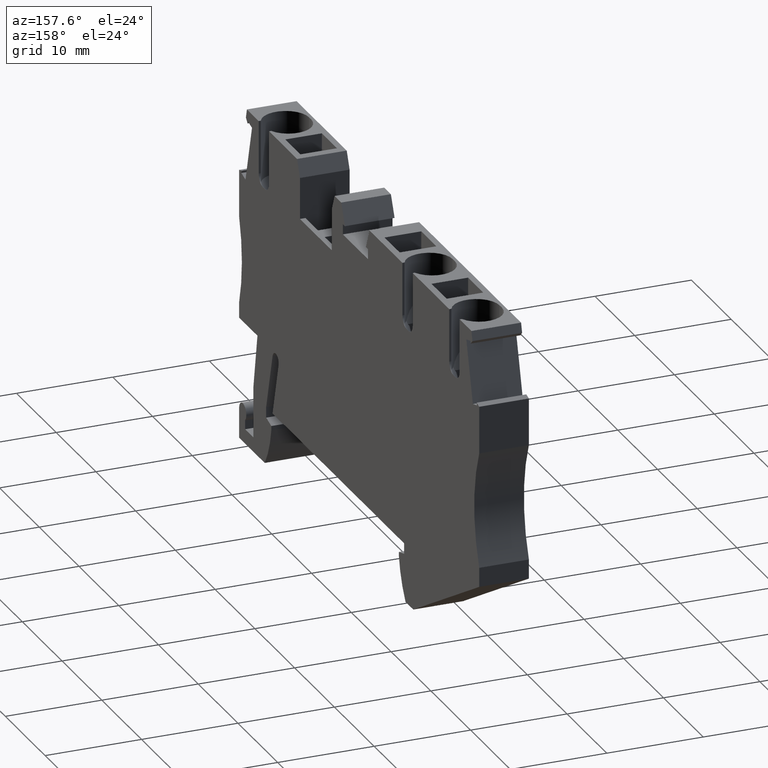
[diagram: clean part render]
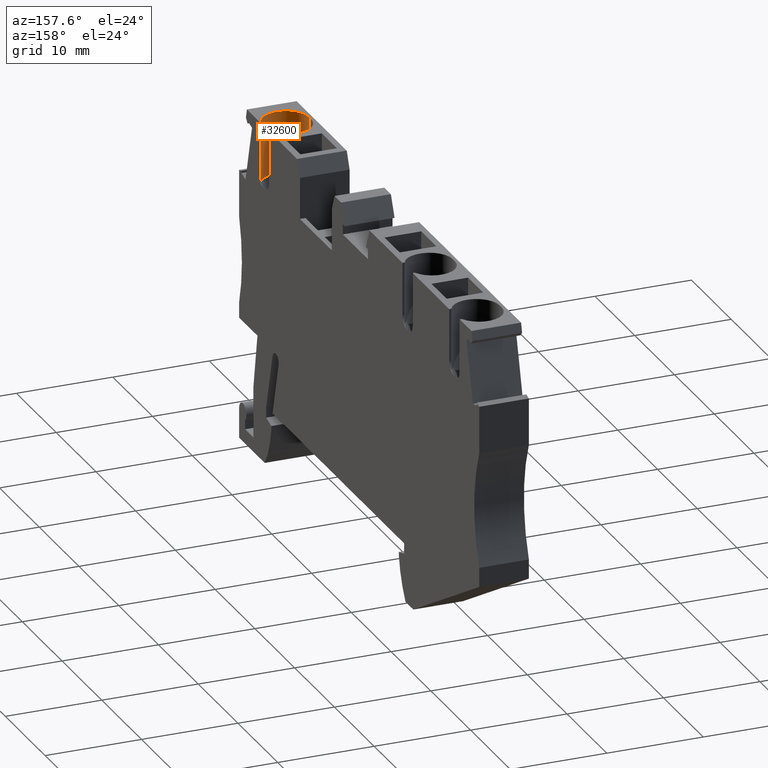
[diagram: same view with one face highlighted and labeled with its STEP entity id]
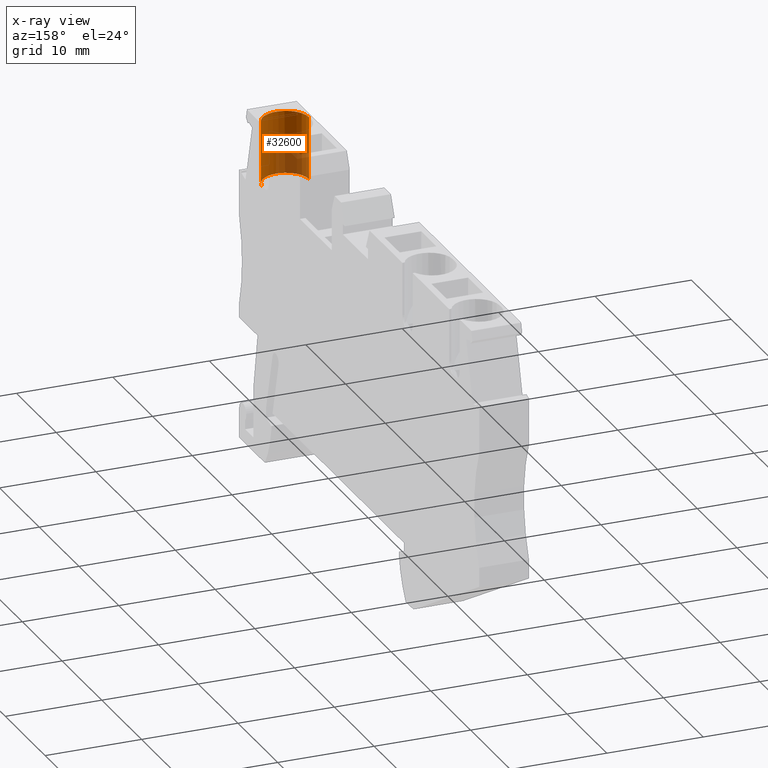
[diagram: x-ray of the same camera — body ghosted, the highlighted face saturated]
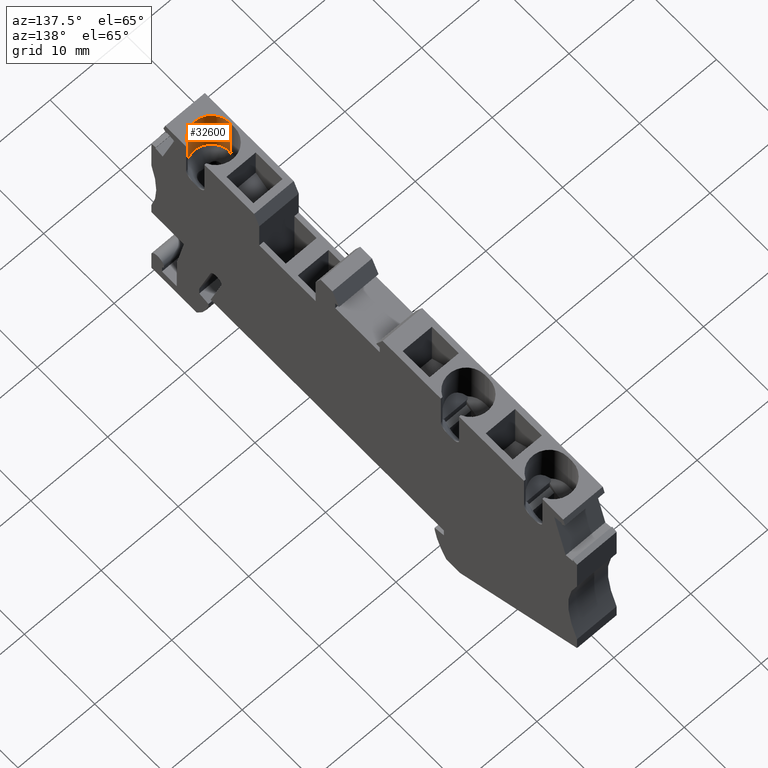
[diagram: same view with one face highlighted and labeled with its STEP entity id]
A machine part, auxiliary view. The second image highlights one B-rep face of the part: STEP entity #32600.
The next image is the same camera in x-ray: the body ghosted, the highlighted face saturated — about 33% of this face is hidden behind the body in this view.
A second angle (auxiliary view) of the same face is appended — the face is thin or edge-on in the first view.
In plain terms, the highlighted cylindrical surface (edge-blend (fillet) strip) has radius 2.4 mm, axis along (-0, 0, 1).
Its self-contained STEP definition (entity closure, byte-faithful):
#5310=CARTESIAN_POINT('',(-16.4428327783254,-15.6499999999752,
53.6699999999862));
#5320=VERTEX_POINT('',#5310);
#22580=CARTESIAN_POINT('',(-16.4428327783235,-9.15000000000117,
48.8699999999862));
#22590=VERTEX_POINT('',#22580);
#22620=CARTESIAN_POINT('',(-16.4428327783245,-9.15000000000117,
51.2699999999862));
#22630=DIRECTION('',(-1.38777878078145E-17,-1.,6.01825140036731E-25));
#22640=DIRECTION('',(-1.,1.38777878078145E-17,-4.0985636225261E-13));
#22650=AXIS2_PLACEMENT_3D('',#22620,#22630,#22640);
#22660=CIRCLE('',#22650,2.4);
#22670=CARTESIAN_POINT('',(-17.4428327783258,-9.15000000000117,
53.4517424229127));
#22680=VERTEX_POINT('',#22670);
#22690=EDGE_CURVE('',#22680,#22590,#22660,.T.);
#31260=CARTESIAN_POINT('',(-16.4428327783213,-15.6500000000012,
48.8699999999711));
#31270=VERTEX_POINT('',#31260);
#31470=CARTESIAN_POINT('',(-16.4428327783245,-15.9456960000012,
51.2699999999862));
#31480=DIRECTION('',(1.38777878078145E-17,1.,-6.01831450923973E-25));
#31490=DIRECTION('',(-1.,1.38777878078145E-17,-4.0985636225261E-13));
#31500=AXIS2_PLACEMENT_3D('',#31470,#31480,#31490);
#31510=CYLINDRICAL_SURFACE('',#31500,2.4);
#31520=CARTESIAN_POINT('',(-16.4428327783213,-15.9456960000012,
48.8699999999711));
#31530=DIRECTION('',(-1.38777878078145E-17,1.,1.46035561422197E-15));
#31540=VECTOR('',#31530,1.);
#31550=LINE('',#31520,#31540);
#31560=EDGE_CURVE('',#31270,#22590,#31550,.T.);
#31570=ORIENTED_EDGE('',*,*,#31560,.T.);
#31580=CARTESIAN_POINT('',(-16.4428327783243,-15.6500000000012,
51.2699999999711));
#31590=DIRECTION('',(1.38777878078145E-17,-1.,-1.46035561422197E-15));
#31600=DIRECTION('',(-1.,-5.96744875736022E-16,-1.25291079088555E-12));
#31610=AXIS2_PLACEMENT_3D('',#31580,#31590,#31600);
#31620=CIRCLE('',#31610,2.40000000000001);
#31630=EDGE_CURVE('',#5320,#31270,#31620,.T.);
#31640=ORIENTED_EDGE('',*,*,#31630,.T.);
#31650=CARTESIAN_POINT('',(-16.4428327783283,-14.6500000000011,
53.6699999999711));
#31660=DIRECTION('',(-1.25291079088555E-12,-1.46035561422272E-15,1.));
#31670=DIRECTION('',(0.992546151641322,-0.121869343405148,
1.2433938112635E-12));
#31680=AXIS2_PLACEMENT_3D('',#31650,#31660,#31670);
#31690=CYLINDRICAL_SURFACE('',#31680,1.);
#31700=CARTESIAN_POINT('',(-16.4428327783243,-15.9456960000012,
51.2699999999711));
#31710=DIRECTION('',(-1.38777878078145E-17,1.,1.46035561422198E-15));
#31720=DIRECTION('',(-1.,-1.38777878078145E-17,-1.25291079088555E-12));
#31730=AXIS2_PLACEMENT_3D('',#31700,#31710,#31720);
#31740=CYLINDRICAL_SURFACE('',#31730,2.4);
#31750=CARTESIAN_POINT('',(-17.442832778328,-14.650000000001,
53.4517424228966));
#31760=CARTESIAN_POINT('',(-17.442832778328,-14.6665135454102,
53.4517424228966));
#31770=CARTESIAN_POINT('',(-17.4424259800981,-14.6829537943668,
53.4519290173053));
#31780=CARTESIAN_POINT('',(-17.4416097830552,-14.6994418327753,
53.4523025671741));
#31790=CARTESIAN_POINT('',(-17.4407938875835,-14.7159237791291,
53.4526759790225));
#31800=CARTESIAN_POINT('',(-17.4395682135413,-14.732416126201,
53.4532365210755));
#31810=CARTESIAN_POINT('',(-17.4379315161851,-14.7488863080281,
53.4539822576618));
#31820=CARTESIAN_POINT('',(-17.4362948264604,-14.7653564130592,
53.454727990771));
#31830=CARTESIAN_POINT('',(-17.434247123736,-14.7818039636034,
53.4556589079843));
#31840=CARTESIAN_POINT('',(-17.4317909820997,-14.7981947070343,
53.4567696886181));
#31850=CARTESIAN_POINT('',(-17.4293348463299,-14.8145854113161,
53.4578804665989));
#31860=CARTESIAN_POINT('',(-17.426470317392,-14.8309189204305,
53.4591710754275));
#31870=CARTESIAN_POINT('',(-17.4232039650077,-14.8471606865697,
53.4606328620274));
#31880=CARTESIAN_POINT('',(-17.4199376137791,-14.8634024469627,
53.4620946481102));
#31890=CARTESIAN_POINT('',(-17.4162695149555,-14.8795520956419,
53.4637275607566));
#31900=CARTESIAN_POINT('',(-17.4122101141881,-14.8955760182129,
53.4655198884517));
#31910=CARTESIAN_POINT('',(-17.4081507072582,-14.9115999651095,
53.4673122188676));
#31920=CARTESIAN_POINT('',(-17.4037000977437,-14.9274978497349,
53.4692638993077));
#31930=CARTESIAN_POINT('',(-17.3988722368989,-14.9432380494685,
53.4713606141478));
#31940=CARTESIAN_POINT('',(-17.3940443600578,-14.9589783013548,
53.473457335935));
#31950=CARTESIAN_POINT('',(-17.3888393479176,-14.9745605733969,
53.4756990186396));
#31960=CARTESIAN_POINT('',(-17.3832740728083,-14.9899561319305,
53.4780693312262));
#31970=CARTESIAN_POINT('',(-17.3777084574302,-15.00535263177,
53.4804397887371));
#31980=CARTESIAN_POINT('',(-17.3717841826878,-15.0205584915094,
53.4829381811296));
#31990=CARTESIAN_POINT('',(-17.3655159449038,-15.0355590410283,
53.4855486394983));
#32000=CARTESIAN_POINT('',(-17.3529711243658,-15.0655801104534,
53.4907730315662));
#32010=CARTESIAN_POINT('',(-17.3389361227699,-15.0950418778142,
53.4964937979803));
#32020=CARTESIAN_POINT('',(-17.3234863100686,-15.123760864819,
53.5025880401224));
#32030=CARTESIAN_POINT('',(-17.3080367303051,-15.1524794188261,
53.5086821903812));
#32040=CARTESIAN_POINT('',(-17.2911746592403,-15.1804502746313,
53.5151482780299));
#32050=CARTESIAN_POINT('',(-17.2730115310154,-15.2074972991764,
53.5218444081355));
#32060=CARTESIAN_POINT('',(-17.25484841094,-15.2345443115861,
53.5285405352367));
#32070=CARTESIAN_POINT('',(-17.2353870734544,-15.260663303184,
53.5354650438485));
#32080=CARTESIAN_POINT('',(-17.2147686056861,-15.2857004628311,
53.5424689389086));
#32090=CARTESIAN_POINT('',(-17.1941498478899,-15.3107379746612,
53.5494729324884));
#32100=CARTESIAN_POINT('',(-17.172377239757,-15.3346901171549,
53.5565547050278));
#32110=CARTESIAN_POINT('',(-17.1496105844828,-15.3574356032381,
53.5635703897176));
#32120=CARTESIAN_POINT('',(-17.126840313834,-15.3801847013342,
53.5705871885073));
#32130=CARTESIAN_POINT('',(-17.1028533253179,-15.4019487507241,
53.5776068412721));
#32140=CARTESIAN_POINT('',(-17.0777712448229,-15.422562711871,
53.5844876633125));
#32150=CARTESIAN_POINT('',(-17.0526894949032,-15.4431764013312,
53.5913683946655));
#32160=CARTESIAN_POINT('',(-17.0265163303428,-15.4626365190426,
53.5981086933166));
#32170=CARTESIAN_POINT('',(-16.9994089132674,-15.480796609316,
53.6045712681072));
#32180=CARTESIAN_POINT('',(-16.9723014659831,-15.4989567198273,
53.6110338500998));
#32190=CARTESIAN_POINT('',(-16.9442644537732,-15.5158135876376,
53.617217131113));
#32200=CARTESIAN_POINT('',(-16.9154798276238,-15.5312518180458,
53.6229991004355));
#32210=CARTESIAN_POINT('',(-16.8866947210012,-15.546690306149,
53.6287811662707));
#32220=CARTESIAN_POINT('',(-16.857167524449,-15.5607075587414,
53.6341605958738));
#32230=CARTESIAN_POINT('',(-16.8270876106643,-15.5732270705674,
53.6390395150116));
#32240=CARTESIAN_POINT('',(-16.812050729183,-15.5794855464686,
53.6414784757533));
#32250=CARTESIAN_POINT('',(-16.7968218875407,-15.5853926378927,
53.6438014894954));
#32260=CARTESIAN_POINT('',(-16.7814274622314,-15.5909323248963,
53.6459952945855));
#32270=CARTESIAN_POINT('',(-16.7660331305818,-15.5964719781964,
53.6481890863286));
#32280=CARTESIAN_POINT('',(-16.7504737486098,-15.6016440089583,
53.6502535721104));
#32290=CARTESIAN_POINT('',(-16.7347787032455,-15.6064348262828,
53.6521770666314));
#32300=CARTESIAN_POINT('',(-16.7190836623566,-15.6112256422412,
53.6541005606038));
#32310=CARTESIAN_POINT('',(-16.7032532427026,-15.615635153215,
53.655883016597));
#32320=CARTESIAN_POINT('',(-16.6873182305465,-15.6196529604224,
53.6575147881246));
#32330=CARTESIAN_POINT('',(-16.6713831957854,-15.6236707733294,
53.6591465619671));
#32340=CARTESIAN_POINT('',(-16.6553438707714,-15.6272968128959,
53.6606276153042));
#32350=CARTESIAN_POINT('',(-16.6392314723079,-15.6305241215826,
53.6619505749207));
#32360=CARTESIAN_POINT('',(-16.6070345394463,-15.6369731577919,
53.664594206286));
#32370=CARTESIAN_POINT('',(-16.5744335574149,-15.6418516793871,
53.6666144795332));
#32380=CARTESIAN_POINT('',(-16.5416021695792,-15.6451103493353,
53.6679667652436));
#32390=CARTESIAN_POINT('',(-16.5251907408529,-15.646739260969,
53.6686427324206));
#32400=CARTESIAN_POINT('',(-16.5087311005722,-15.647962640824,
53.6691517006975));
#32410=CARTESIAN_POINT('',(-16.4922581882709,-15.6487778175622,
53.6694910145098));
#32420=CARTESIAN_POINT('',(-16.475784310893,-15.649593042058,
53.6698303482009));
#32430=CARTESIAN_POINT('',(-16.459301586492,-15.6500000000011,
53.6699999999711));
#32440=CARTESIAN_POINT('',(-16.4428327783278,-15.6500000000011,
53.6699999999711));
#32450=B_SPLINE_CURVE_WITH_KNOTS('',3,(#31750,#31760,#31770,#31780,
#31790,#31800,#31810,#31820,#31830,#31840,#31850,#31860,#31870,#31880,
#31890,#31900,#31910,#31920,#31930,#31940,#31950,#31960,#31970,#31980,
#31990,#32000,#32010,#32020,#32030,#32040,#32050,#32060,#32070,#32080,
#32090,#32100,#32110,#32120,#32130,#32140,#32150,#32160,#32170,#32180,
#32190,#32200,#32210,#32220,#32230,#32240,#32250,#32260,#32270,#32280,
#32290,#32300,#32310,#32320,#32330,#32340,#32350,#32360,#32370,#32380,
#32390,#32400,#32410,#32420,#32430,#32440),.UNSPECIFIED.,.F.,.F.,(4,3,3,
3,3,3,3,3,3,3,3,3,3,3,3,3,3,3,3,3,3,3,3,4),(0.,0.0494662247970222,
0.099081885937742,0.148855385619318,0.198724508511175,0.248618211190519,
0.298460508284675,0.348174085775483,0.397686136808932,0.496905755829805,
0.596596253643882,0.69630067528341,0.795518282975098,0.894752194136719,
0.994466397991994,1.09415301544089,1.19335296493702,1.24282250690082,
1.29237239871723,1.34193309014772,1.39143822137925,1.4903807299471,
1.53989019130823,1.58933923803406),.UNSPECIFIED.);
#32460=SURFACE_CURVE('',#32450,(#31690,#31740),.CURVE_3D.);
#32470=CARTESIAN_POINT('',(-17.4428327783277,-14.650000000001,
53.4517424228967));
#32480=VERTEX_POINT('',#32470);
#32490=EDGE_CURVE('',#32480,#5320,#32460,.T.);
#32500=ORIENTED_EDGE('',*,*,#32490,.T.);
#32510=CARTESIAN_POINT('',(-17.4428327783277,-15.9456960000012,
53.4517424228967));
#32520=DIRECTION('',(-1.38777878078145E-17,1.,1.46035561422197E-15));
#32530=VECTOR('',#32520,1.);
#32540=LINE('',#32510,#32530);
#32550=EDGE_CURVE('',#32480,#22680,#32540,.T.);
#32560=ORIENTED_EDGE('',*,*,#32550,.F.);
#32570=ORIENTED_EDGE('',*,*,#22690,.F.);
#32580=EDGE_LOOP('',(#32570,#32560,#32500,#31640,#31570));
#32590=FACE_OUTER_BOUND('',#32580,.T.);
#32600=ADVANCED_FACE('',(#32590),#31510,.F.);